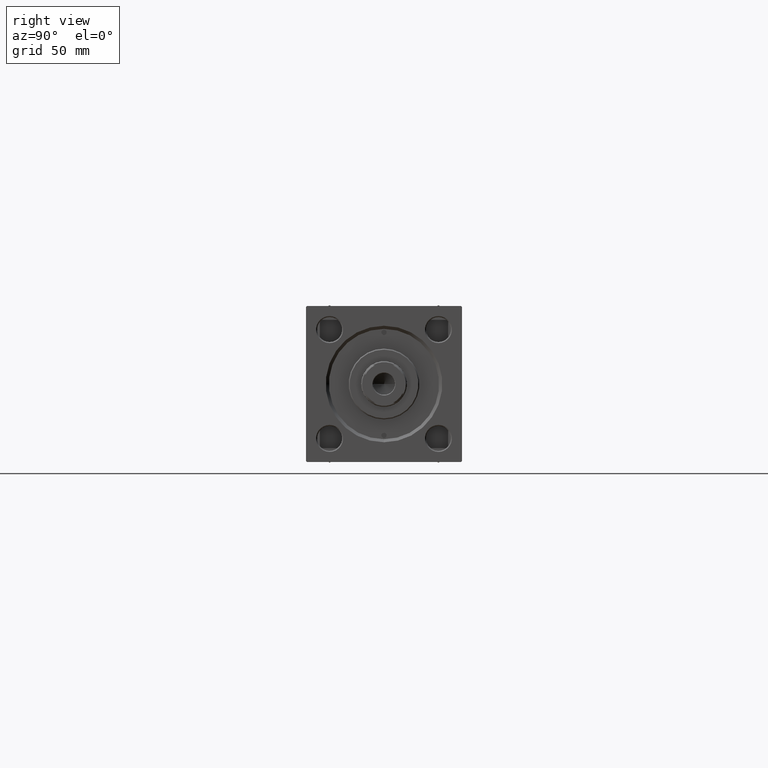
[diagram: clean part render]
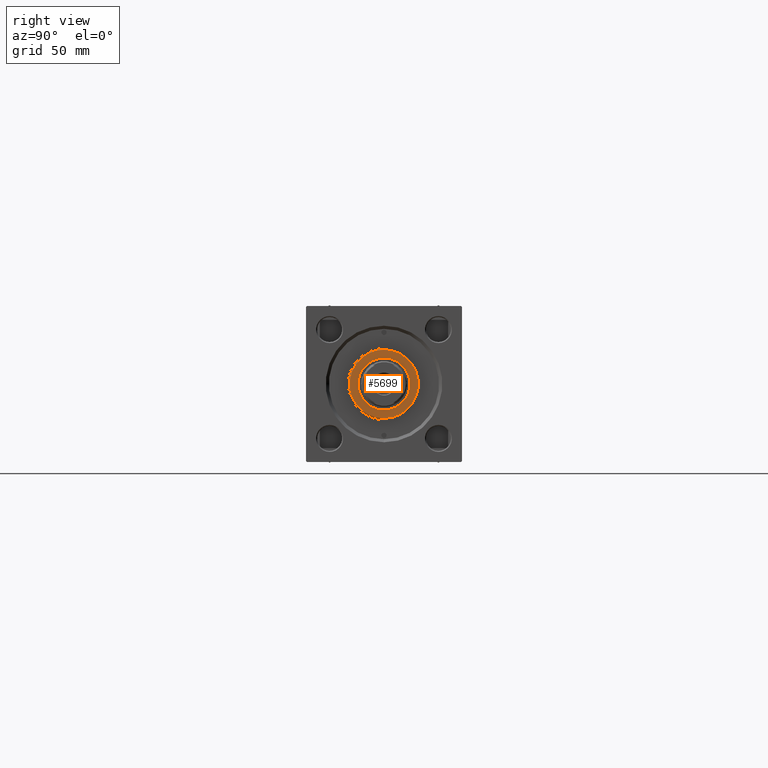
[diagram: same view with one face highlighted and labeled with its STEP entity id]
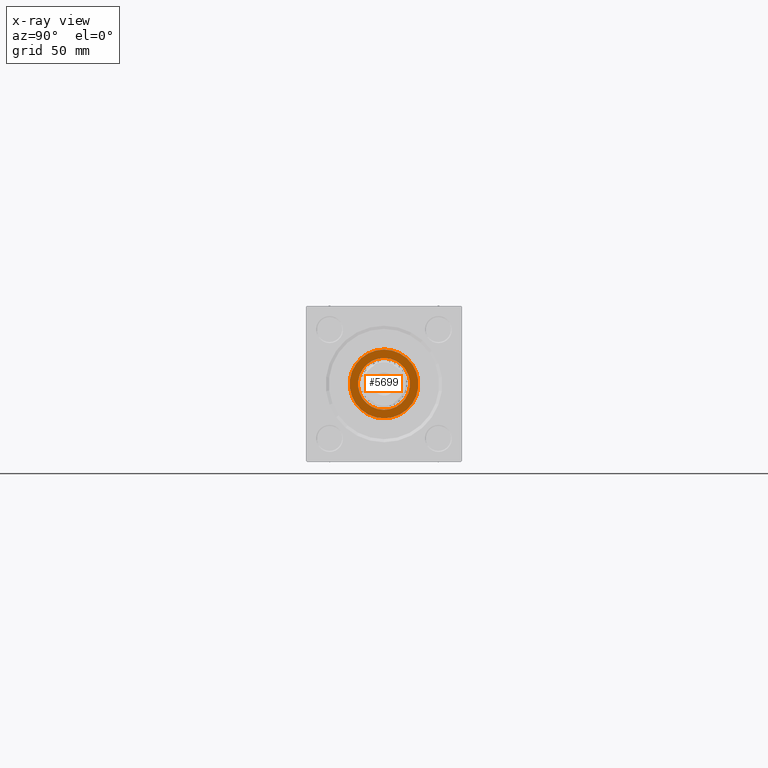
[diagram: x-ray of the same camera — body ghosted, the highlighted face saturated]
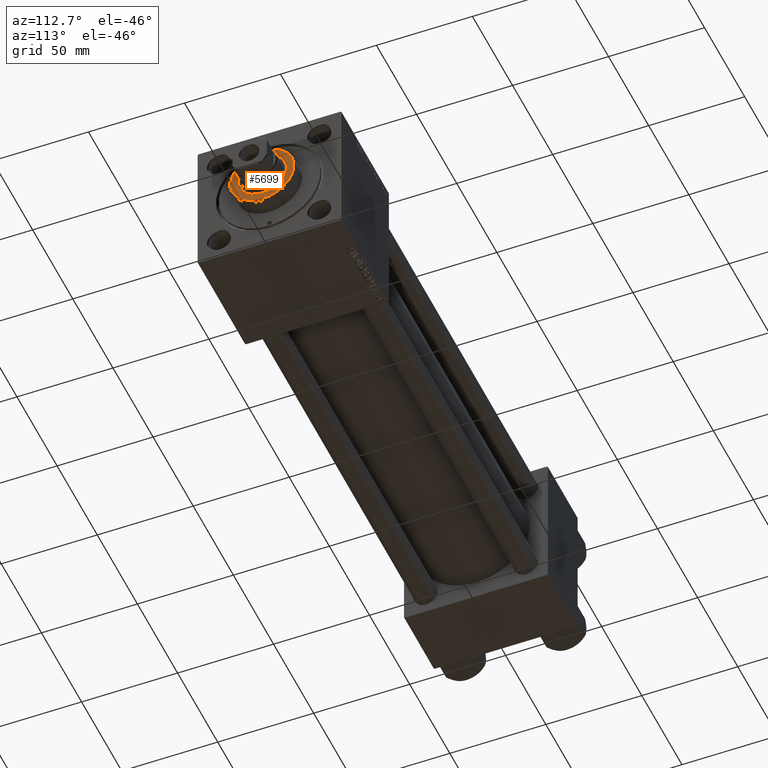
[diagram: same view with one face highlighted and labeled with its STEP entity id]
A machine part, right view. The second image highlights one B-rep face of the part: STEP entity #5699.
The next image is the same camera in x-ray: the body ghosted, the highlighted face saturated — about 0% of this face is hidden behind the body in this view.
A second angle (auxiliary view) of the same face is appended — the face is thin or edge-on in the first view.
In plain terms, the highlighted planar face has unit normal (1, 0, 0).
Its self-contained STEP definition (entity closure, byte-faithful):
#1590 = CARTESIAN_POINT ( 'NONE',  ( -12.50000000000000000, 1.530808498934191521E-15, 37.69999999999999574 ) ) ;
#5699 = ADVANCED_FACE ( 'NONE', ( #10460, #37200 ), #6381, .T. ) ;
#6381 = PLANE ( 'NONE',  #50129 ) ;
#7618 = VERTEX_POINT ( 'NONE', #23778 ) ;
#8115 = DIRECTION ( 'NONE',  ( 0.000000000000000000, 0.000000000000000000, 1.000000000000000000 ) ) ;
#8627 = CIRCLE ( 'NONE', #45231, 12.50000000000000000 ) ;
#9554 = DIRECTION ( 'NONE',  ( 1.000000000000000000, 0.000000000000000000, 0.000000000000000000 ) ) ;
#10460 = FACE_BOUND ( 'NONE', #25264, .T. ) ;
#12837 = CARTESIAN_POINT ( 'NONE',  ( 0.000000000000000000, 0.000000000000000000, 37.69999999999999574 ) ) ;
#13237 = CARTESIAN_POINT ( 'NONE',  ( 0.000000000000000000, 0.000000000000000000, 37.69999999999999574 ) ) ;
#14403 = VERTEX_POINT ( 'NONE', #48097 ) ;
#15784 = CIRCLE ( 'NONE', #49892, 12.50000000000000000 ) ;
#17262 = CIRCLE ( 'NONE', #45619, 16.50000000000000000 ) ;
#17345 = DIRECTION ( 'NONE',  ( 1.000000000000000000, 0.000000000000000000, -0.000000000000000000 ) ) ;
#19047 = ORIENTED_EDGE ( 'NONE', *, *, #47560, .F. ) ;
#20987 = DIRECTION ( 'NONE',  ( 0.000000000000000000, 0.000000000000000000, 1.000000000000000000 ) ) ;
#21686 = DIRECTION ( 'NONE',  ( 0.000000000000000000, 0.000000000000000000, 1.000000000000000000 ) ) ;
#21732 = EDGE_CURVE ( 'NONE', #14403, #7618, #39182, .T. ) ;
#22582 = CARTESIAN_POINT ( 'NONE',  ( 12.50000000000000000, 0.000000000000000000, 37.69999999999999574 ) ) ;
#22685 = ORIENTED_EDGE ( 'NONE', *, *, #39875, .T. ) ;
#23778 = CARTESIAN_POINT ( 'NONE',  ( 16.50000000000000000, 2.051283388571816887E-15, 37.69999999999999574 ) ) ;
#25264 = EDGE_LOOP ( 'NONE', ( #45866, #19047 ) ) ;
#26297 = VERTEX_POINT ( 'NONE', #22582 ) ;
#28124 = DIRECTION ( 'NONE',  ( 1.000000000000000000, 0.000000000000000000, 0.000000000000000000 ) ) ;
#31549 = CARTESIAN_POINT ( 'NONE',  ( 0.000000000000000000, 0.000000000000000000, 37.69999999999999574 ) ) ;
#32105 = DIRECTION ( 'NONE',  ( 0.000000000000000000, 0.000000000000000000, 1.000000000000000000 ) ) ;
#32496 = DIRECTION ( 'NONE',  ( 0.000000000000000000, 0.000000000000000000, 1.000000000000000000 ) ) ;
#35851 = DIRECTION ( 'NONE',  ( 1.000000000000000000, 0.000000000000000000, 0.000000000000000000 ) ) ;
#36253 = EDGE_CURVE ( 'NONE', #26297, #48925, #8627, .T. ) ;
#37200 = FACE_OUTER_BOUND ( 'NONE', #45497, .T. ) ;
#37454 = ORIENTED_EDGE ( 'NONE', *, *, #21732, .T. ) ;
#39182 = CIRCLE ( 'NONE', #41652, 16.50000000000000000 ) ;
#39875 = EDGE_CURVE ( 'NONE', #7618, #14403, #17262, .T. ) ;
#41652 = AXIS2_PLACEMENT_3D ( 'NONE', #44444, #32496, #9554 ) ;
#44444 = CARTESIAN_POINT ( 'NONE',  ( 0.000000000000000000, 0.000000000000000000, 37.69999999999999574 ) ) ;
#44789 = DIRECTION ( 'NONE',  ( 1.000000000000000000, 0.000000000000000000, 0.000000000000000000 ) ) ;
#45082 = CARTESIAN_POINT ( 'NONE',  ( 0.000000000000000000, 0.000000000000000000, 37.69999999999999574 ) ) ;
#45231 = AXIS2_PLACEMENT_3D ( 'NONE', #13237, #32105, #44789 ) ;
#45497 = EDGE_LOOP ( 'NONE', ( #37454, #22685 ) ) ;
#45619 = AXIS2_PLACEMENT_3D ( 'NONE', #12837, #20987, #28124 ) ;
#45866 = ORIENTED_EDGE ( 'NONE', *, *, #36253, .F. ) ;
#47560 = EDGE_CURVE ( 'NONE', #48925, #26297, #15784, .T. ) ;
#48097 = CARTESIAN_POINT ( 'NONE',  ( -16.50000000000000000, 0.000000000000000000, 37.69999999999999574 ) ) ;
#48925 = VERTEX_POINT ( 'NONE', #1590 ) ;
#49892 = AXIS2_PLACEMENT_3D ( 'NONE', #31549, #8115, #35851 ) ;
#50129 = AXIS2_PLACEMENT_3D ( 'NONE', #45082, #21686, #17345 ) ;